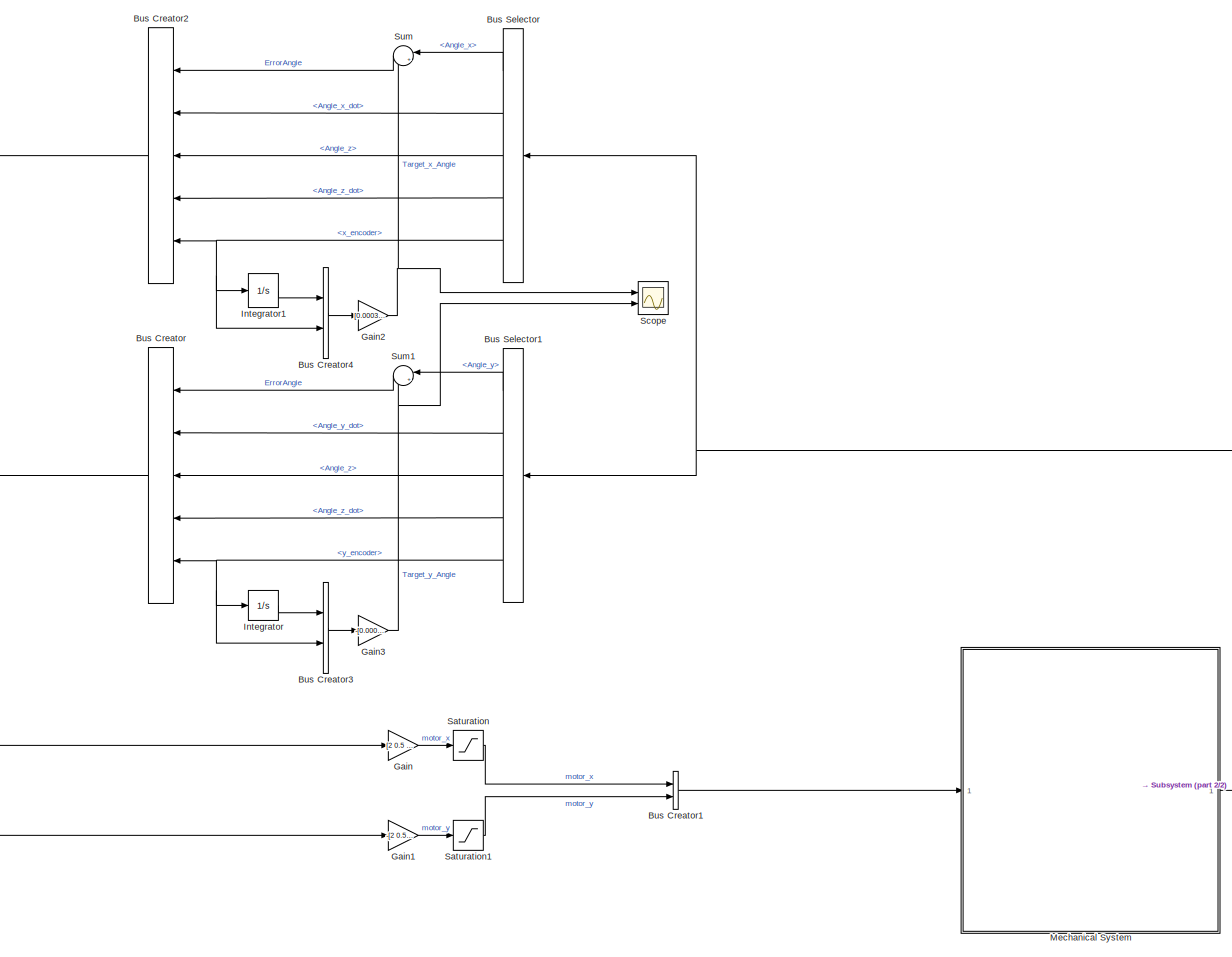
[diagram: root canvas - part 1/2, center side, full height]
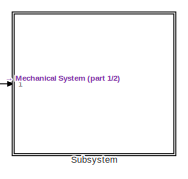
[diagram: root canvas - part 2/2, bottom right region]
MODEL slx_6ed4446f0a41
KIND model
CONFIG AbsTol = auto
CONFIG EnableMultiTasking = off
CONFIG FixedStep = auto
CONFIG MaxStep = 1e-3
CONFIG MinStep = 1e-6
CONFIG RelTol = 1e-3
CONFIG SampleTimeConstraint = Unconstrained
CONFIG Solver = VariableStepAuto
CONFIG SolverName = VariableStepAuto
CONFIG StartTime = 0.0
CONFIG StopTime = 5
BLOCK [BusCreator] Bus Creator
  DisplayOption = bar
  InheritFromInputs = on
  Inputs = 5
  Ports = [5, 1]
BLOCK [BusCreator] Bus Creator1
  DisplayOption = bar
  InheritFromInputs = on
  Inputs = 2
  Ports = [2, 1]
BLOCK [BusCreator] Bus Creator2
  DisplayOption = bar
  InheritFromInputs = on
  Inputs = 5
  Ports = [5, 1]
BLOCK [BusCreator] Bus Creator3
  DisplayOption = bar
  InheritFromInputs = on
  Inputs = 2
  Ports = [2, 1]
BLOCK [BusCreator] Bus Creator4
  DisplayOption = bar
  InheritFromInputs = on
  Inputs = 2
  Ports = [2, 1]
BLOCK [BusSelector] Bus Selector
  OutputAsBus = off
  OutputSignals = Angle_x,Angle_x_dot,Angle_z,Angle_z_dot,x_encoder
  Ports = [1, 5]
BLOCK [BusSelector] Bus Selector1
  OutputAsBus = off
  OutputSignals = Angle_y,Angle_y_dot,Angle_z,Angle_z_dot,y_encoder
  Ports = [1, 5]
BLOCK [Gain] Gain
  Gain = [2 0.5 0 0 0.01-0.0001]
  Multiplication = Matrix(K*u)
  OutDataTypeStr = Inherit: Inherit via internal rule
  ParamDataTypeStr = Inherit: Inherit via internal rule
  SaturateOnIntegerOverflow = off
BLOCK [Gain] Gain1
  Gain = -[2 0.5 0 0 -0.01+0.0001]
  Multiplication = Matrix(K*u)
  OutDataTypeStr = Inherit: Inherit via internal rule
  ParamDataTypeStr = Inherit: Inherit via internal rule
  SaturateOnIntegerOverflow = off
BLOCK [Gain] Gain2
  Gain = [0.0003 0.00035]
  Multiplication = Matrix(K*u)
  OutDataTypeStr = Inherit: Inherit via internal rule
  ParamDataTypeStr = Inherit: Inherit via internal rule
  SaturateOnIntegerOverflow = off
BLOCK [Gain] Gain3
  Gain = -[0.0003 0.00035]
  Multiplication = Matrix(K*u)
  OutDataTypeStr = Inherit: Inherit via internal rule
  ParamDataTypeStr = Inherit: Inherit via internal rule
  SaturateOnIntegerOverflow = off
BLOCK [Integrator] Integrator
  LimitOutput = on
  LowerSaturationLimit = -100
  Ports = [1, 1]
  UpperSaturationLimit = 100
BLOCK [Integrator] Integrator1
  LimitOutput = on
  LowerSaturationLimit = -100
  Ports = [1, 1]
  UpperSaturationLimit = 100
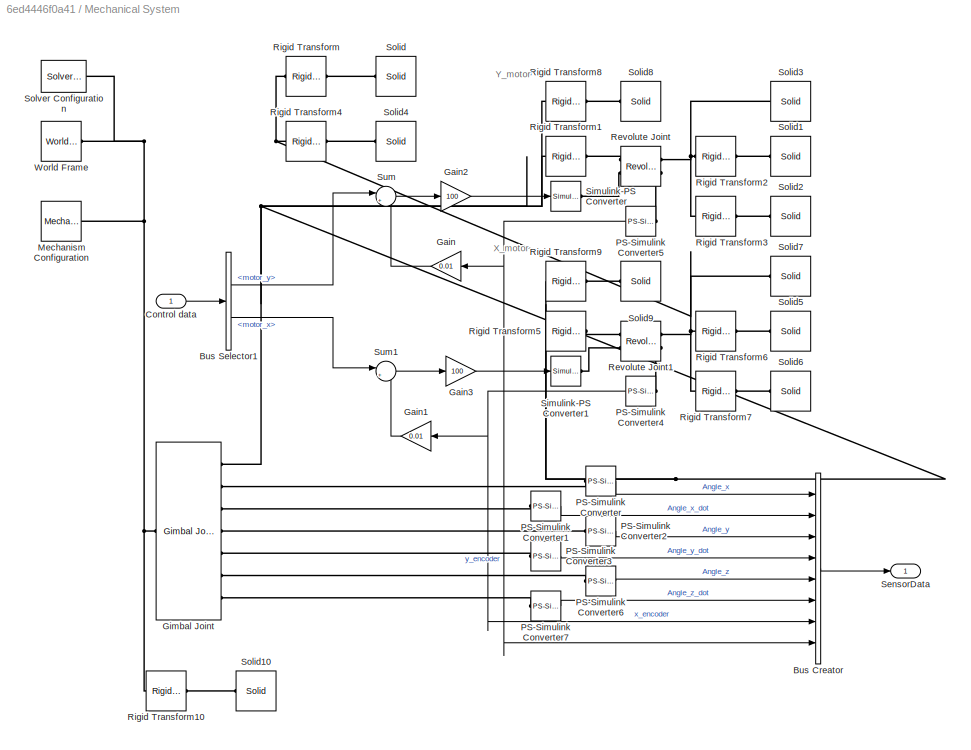
BLOCK [SubSystem] Mechanical System
  Ports = [1, 1]
  RequestExecContextInheritance = off
  Variant = off
BLOCK [BusCreator] Mechanical System/Bus Creator
  DisplayOption = bar
  InheritFromInputs = on
  Inputs = 8
  Ports = [8, 1]
BLOCK [BusSelector] Mechanical System/Bus Selector1
  OutputAsBus = off
  OutputSignals = motor_y,motor_x
  Ports = [1, 2]
BLOCK [Inport] Mechanical System/Control data
  IconDisplay = Port number
BLOCK [Gain] Mechanical System/Gain
  Gain = 0.01
  OutDataTypeStr = Inherit: Inherit via internal rule
  ParamDataTypeStr = Inherit: Inherit via internal rule
  SaturateOnIntegerOverflow = off
BLOCK [Gain] Mechanical System/Gain1
  Gain = 0.01
  OutDataTypeStr = Inherit: Inherit via internal rule
  ParamDataTypeStr = Inherit: Inherit via internal rule
  SaturateOnIntegerOverflow = off
BLOCK [Gain] Mechanical System/Gain2
  Gain = 100
  OutDataTypeStr = Inherit: Inherit via internal rule
  ParamDataTypeStr = Inherit: Inherit via internal rule
  SaturateOnIntegerOverflow = off
BLOCK [Gain] Mechanical System/Gain3
  Gain = 100
  OutDataTypeStr = Inherit: Inherit via internal rule
  ParamDataTypeStr = Inherit: Inherit via internal rule
  SaturateOnIntegerOverflow = off
BLOCK [Reference] Mechanical System/Gimbal Joint  REF=sm_lib/Joints/Gimbal Joint
  Ports = [0, 0, 0, 0, 0, 1, 7]
  SourceBlock = sm_lib/Joints/Gimbal Joint
  SourceProductBaseCode = MS
  SourceProductName = Simscape Multibody
  SourceType = Gimbal Joint
BLOCK [Reference] Mechanical System/Mechanism Configuration  REF=sm_lib/Utilities/Mechanism
Configuration
  Ports = [0, 0, 0, 0, 0, 0, 1]
  SourceBlock = sm_lib/Utilities/Mechanism\nConfiguration
  SourceProductBaseCode = MS
  SourceProductName = Simscape Multibody
  SourceType = Mechanism\nConfiguration
BLOCK [Reference] Mechanical System/PS-Simulink Converter  REF=nesl_utility/PS-Simulink
Converter
  Ports = [0, 1, 0, 0, 0, 1]
  SourceBlock = nesl_utility/PS-Simulink\nConverter
  SourceProductBaseCode = SS
  SourceProductName = Simscape
  SourceType = PS-Simulink\nConverter
BLOCK [Reference] Mechanical System/PS-Simulink Converter1  REF=nesl_utility/PS-Simulink
Converter
  Ports = [0, 1, 0, 0, 0, 1]
  SourceBlock = nesl_utility/PS-Simulink\nConverter
  SourceProductBaseCode = SS
  SourceProductName = Simscape
  SourceType = PS-Simulink\nConverter
BLOCK [Reference] Mechanical System/PS-Simulink Converter2  REF=nesl_utility/PS-Simulink
Converter
  Ports = [0, 1, 0, 0, 0, 1]
  SourceBlock = nesl_utility/PS-Simulink\nConverter
  SourceProductBaseCode = SS
  SourceProductName = Simscape
  SourceType = PS-Simulink\nConverter
BLOCK [Reference] Mechanical System/PS-Simulink Converter3  REF=nesl_utility/PS-Simulink
Converter
  Ports = [0, 1, 0, 0, 0, 1]
  SourceBlock = nesl_utility/PS-Simulink\nConverter
  SourceProductBaseCode = SS
  SourceProductName = Simscape
  SourceType = PS-Simulink\nConverter
BLOCK [Reference] Mechanical System/PS-Simulink Converter4  REF=nesl_utility/PS-Simulink
Converter
  Ports = [0, 1, 0, 0, 0, 1]
  SourceBlock = nesl_utility/PS-Simulink\nConverter
  SourceProductBaseCode = SS
  SourceProductName = Simscape
  SourceType = PS-Simulink\nConverter
BLOCK [Reference] Mechanical System/PS-Simulink Converter5  REF=nesl_utility/PS-Simulink
Converter
  Ports = [0, 1, 0, 0, 0, 1]
  SourceBlock = nesl_utility/PS-Simulink\nConverter
  SourceProductBaseCode = SS
  SourceProductName = Simscape
  SourceType = PS-Simulink\nConverter
BLOCK [Reference] Mechanical System/PS-Simulink Converter6  REF=nesl_utility/PS-Simulink
Converter
  Ports = [0, 1, 0, 0, 0, 1]
  SourceBlock = nesl_utility/PS-Simulink\nConverter
  SourceProductBaseCode = SS
  SourceProductName = Simscape
  SourceType = PS-Simulink\nConverter
BLOCK [Reference] Mechanical System/PS-Simulink Converter7  REF=nesl_utility/PS-Simulink
Converter
  Ports = [0, 1, 0, 0, 0, 1]
  SourceBlock = nesl_utility/PS-Simulink\nConverter
  SourceProductBaseCode = SS
  SourceProductName = Simscape
  SourceType = PS-Simulink\nConverter
BLOCK [Reference] Mechanical System/Revolute Joint  REF=sm_lib/Joints/Revolute Joint
  Ports = [0, 0, 0, 0, 0, 2, 2]
  SourceBlock = sm_lib/Joints/Revolute Joint
  SourceProductBaseCode = MS
  SourceProductName = Simscape Multibody
  SourceType = Revolute Joint
BLOCK [Reference] Mechanical System/Revolute Joint1  REF=sm_lib/Joints/Revolute Joint
  Ports = [0, 0, 0, 0, 0, 2, 2]
  SourceBlock = sm_lib/Joints/Revolute Joint
  SourceProductBaseCode = MS
  SourceProductName = Simscape Multibody
  SourceType = Revolute Joint
BLOCK [Reference] Mechanical System/Rigid Transform  REF=sm_lib/Frames and
Transforms/Rigid
Transform
  Ports = [0, 0, 0, 0, 0, 1, 1]
  SourceBlock = sm_lib/Frames and\nTransforms/Rigid\nTransform
  SourceProductBaseCode = MS
  SourceProductName = Simscape Multibody
  SourceType = Rigid\nTransform
BLOCK [Reference] Mechanical System/Rigid Transform1  REF=sm_lib/Frames and
Transforms/Rigid
Transform
  Ports = [0, 0, 0, 0, 0, 1, 1]
  SourceBlock = sm_lib/Frames and\nTransforms/Rigid\nTransform
  SourceProductBaseCode = MS
  SourceProductName = Simscape Multibody
  SourceType = Rigid\nTransform
BLOCK [Reference] Mechanical System/Rigid Transform10  REF=sm_lib/Frames and
Transforms/Rigid
Transform
  Ports = [0, 0, 0, 0, 0, 1, 1]
  SourceBlock = sm_lib/Frames and\nTransforms/Rigid\nTransform
  SourceProductBaseCode = MS
  SourceProductName = Simscape Multibody
  SourceType = Rigid\nTransform
BLOCK [Reference] Mechanical System/Rigid Transform2  REF=sm_lib/Frames and
Transforms/Rigid
Transform
  Ports = [0, 0, 0, 0, 0, 1, 1]
  SourceBlock = sm_lib/Frames and\nTransforms/Rigid\nTransform
  SourceProductBaseCode = MS
  SourceProductName = Simscape Multibody
  SourceType = Rigid\nTransform
BLOCK [Reference] Mechanical System/Rigid Transform3  REF=sm_lib/Frames and
Transforms/Rigid
Transform
  Ports = [0, 0, 0, 0, 0, 1, 1]
  SourceBlock = sm_lib/Frames and\nTransforms/Rigid\nTransform
  SourceProductBaseCode = MS
  SourceProductName = Simscape Multibody
  SourceType = Rigid\nTransform
BLOCK [Reference] Mechanical System/Rigid Transform4  REF=sm_lib/Frames and
Transforms/Rigid
Transform
  Ports = [0, 0, 0, 0, 0, 1, 1]
  SourceBlock = sm_lib/Frames and\nTransforms/Rigid\nTransform
  SourceProductBaseCode = MS
  SourceProductName = Simscape Multibody
  SourceType = Rigid\nTransform
BLOCK [Reference] Mechanical System/Rigid Transform5  REF=sm_lib/Frames and
Transforms/Rigid
Transform
  Ports = [0, 0, 0, 0, 0, 1, 1]
  SourceBlock = sm_lib/Frames and\nTransforms/Rigid\nTransform
  SourceProductBaseCode = MS
  SourceProductName = Simscape Multibody
  SourceType = Rigid\nTransform
BLOCK [Reference] Mechanical System/Rigid Transform6  REF=sm_lib/Frames and
Transforms/Rigid
Transform
  Ports = [0, 0, 0, 0, 0, 1, 1]
  SourceBlock = sm_lib/Frames and\nTransforms/Rigid\nTransform
  SourceProductBaseCode = MS
  SourceProductName = Simscape Multibody
  SourceType = Rigid\nTransform
BLOCK [Reference] Mechanical System/Rigid Transform7  REF=sm_lib/Frames and
Transforms/Rigid
Transform
  Ports = [0, 0, 0, 0, 0, 1, 1]
  SourceBlock = sm_lib/Frames and\nTransforms/Rigid\nTransform
  SourceProductBaseCode = MS
  SourceProductName = Simscape Multibody
  SourceType = Rigid\nTransform
BLOCK [Reference] Mechanical System/Rigid Transform8  REF=sm_lib/Frames and
Transforms/Rigid
Transform
  Ports = [0, 0, 0, 0, 0, 1, 1]
  SourceBlock = sm_lib/Frames and\nTransforms/Rigid\nTransform
  SourceProductBaseCode = MS
  SourceProductName = Simscape Multibody
  SourceType = Rigid\nTransform
BLOCK [Reference] Mechanical System/Rigid Transform9  REF=sm_lib/Frames and
Transforms/Rigid
Transform
  Ports = [0, 0, 0, 0, 0, 1, 1]
  SourceBlock = sm_lib/Frames and\nTransforms/Rigid\nTransform
  SourceProductBaseCode = MS
  SourceProductName = Simscape Multibody
  SourceType = Rigid\nTransform
BLOCK [Outport] Mechanical System/SensorData
  IconDisplay = Port number
BLOCK [Reference] Mechanical System/Simulink-PS Converter  REF=nesl_utility/Simulink-PS
Converter
  Ports = [1, 0, 0, 0, 0, 0, 1]
  SourceBlock = nesl_utility/Simulink-PS\nConverter
  SourceProductBaseCode = SS
  SourceProductName = Simscape
  SourceType = Simulink-PS\nConverter
BLOCK [Reference] Mechanical System/Simulink-PS Converter1  REF=nesl_utility/Simulink-PS
Converter
  Ports = [1, 0, 0, 0, 0, 0, 1]
  SourceBlock = nesl_utility/Simulink-PS\nConverter
  SourceProductBaseCode = SS
  SourceProductName = Simscape
  SourceType = Simulink-PS\nConverter
BLOCK [Reference] Mechanical System/Solid  REF=sm_lib/Body Elements/Solid
  Ports = [0, 0, 0, 0, 0, 0, 1]
  SourceBlock = sm_lib/Body Elements/Solid
  SourceProductBaseCode = MS
  SourceProductName = Simscape Multibody
  SourceType = Solid
BLOCK [Reference] Mechanical System/Solid1  REF=sm_lib/Body Elements/Solid
  Ports = [0, 0, 0, 0, 0, 0, 1]
  SourceBlock = sm_lib/Body Elements/Solid
  SourceProductBaseCode = MS
  SourceProductName = Simscape Multibody
  SourceType = Solid
BLOCK [Reference] Mechanical System/Solid10  REF=sm_lib/Body Elements/Solid
  Ports = [0, 0, 0, 0, 0, 0, 1]
  SourceBlock = sm_lib/Body Elements/Solid
  SourceProductBaseCode = MS
  SourceProductName = Simscape Multibody
  SourceType = Solid
BLOCK [Reference] Mechanical System/Solid2  REF=sm_lib/Body Elements/Solid
  Ports = [0, 0, 0, 0, 0, 0, 1]
  SourceBlock = sm_lib/Body Elements/Solid
  SourceProductBaseCode = MS
  SourceProductName = Simscape Multibody
  SourceType = Solid
BLOCK [Reference] Mechanical System/Solid3  REF=sm_lib/Body Elements/Solid
  Ports = [0, 0, 0, 0, 0, 0, 1]
  SourceBlock = sm_lib/Body Elements/Solid
  SourceProductBaseCode = MS
  SourceProductName = Simscape Multibody
  SourceType = Solid
BLOCK [Reference] Mechanical System/Solid4  REF=sm_lib/Body Elements/Solid
  Ports = [0, 0, 0, 0, 0, 0, 1]
  SourceBlock = sm_lib/Body Elements/Solid
  SourceProductBaseCode = MS
  SourceProductName = Simscape Multibody
  SourceType = Solid
BLOCK [Reference] Mechanical System/Solid5  REF=sm_lib/Body Elements/Solid
  Ports = [0, 0, 0, 0, 0, 0, 1]
  SourceBlock = sm_lib/Body Elements/Solid
  SourceProductBaseCode = MS
  SourceProductName = Simscape Multibody
  SourceType = Solid
BLOCK [Reference] Mechanical System/Solid6  REF=sm_lib/Body Elements/Solid
  Ports = [0, 0, 0, 0, 0, 0, 1]
  SourceBlock = sm_lib/Body Elements/Solid
  SourceProductBaseCode = MS
  SourceProductName = Simscape Multibody
  SourceType = Solid
BLOCK [Reference] Mechanical System/Solid7  REF=sm_lib/Body Elements/Solid
  Ports = [0, 0, 0, 0, 0, 0, 1]
  SourceBlock = sm_lib/Body Elements/Solid
  SourceProductBaseCode = MS
  SourceProductName = Simscape Multibody
  SourceType = Solid
BLOCK [Reference] Mechanical System/Solid8  REF=sm_lib/Body Elements/Solid
  Ports = [0, 0, 0, 0, 0, 0, 1]
  SourceBlock = sm_lib/Body Elements/Solid
  SourceProductBaseCode = MS
  SourceProductName = Simscape Multibody
  SourceType = Solid
BLOCK [Reference] Mechanical System/Solid9  REF=sm_lib/Body Elements/Solid
  Ports = [0, 0, 0, 0, 0, 0, 1]
  SourceBlock = sm_lib/Body Elements/Solid
  SourceProductBaseCode = MS
  SourceProductName = Simscape Multibody
  SourceType = Solid
BLOCK [Reference] Mechanical System/Solver Configuration  REF=nesl_utility/Solver
Configuration
  Ports = [0, 0, 0, 0, 0, 0, 1]
  SourceBlock = nesl_utility/Solver\nConfiguration
  SourceProductBaseCode = SS
  SourceProductName = Simscape
  SourceType = Solver\nConfiguration
BLOCK [Sum] Mechanical System/Sum
  IconShape = round
  InputSameDT = off
  Inputs = |+-
  OutDataTypeStr = Inherit: Inherit via internal rule
  Ports = [2, 1]
  SaturateOnIntegerOverflow = off
BLOCK [Sum] Mechanical System/Sum1
  IconShape = round
  InputSameDT = off
  Inputs = |+-
  OutDataTypeStr = Inherit: Inherit via internal rule
  Ports = [2, 1]
  SaturateOnIntegerOverflow = off
BLOCK [Reference] Mechanical System/World Frame  REF=sm_lib/Frames and
Transforms/World Frame
  Ports = [0, 0, 0, 0, 0, 0, 1]
  SourceBlock = sm_lib/Frames and\nTransforms/World Frame
  SourceProductBaseCode = MS
  SourceProductName = Simscape Multibody
  SourceType = World Frame
BLOCK [Saturate] Saturation
  InputPortMap = u0
  LowerLimit = -10
  Ports = [1, 1]
  UpperLimit = 10
BLOCK [Saturate] Saturation1
  InputPortMap = u0
  LowerLimit = -10
  Ports = [1, 1]
  UpperLimit = 10
BLOCK [Scope] Scope
  NumInputPorts = 2
  Ports = [2]
  ScopeSpecificationString = Simulink.scopes.TimeScopeBlockCfg('CurrentConfiguration', extmgr.ConfigurationSet(extmgr.Configuration('Core','General UI',true),extmgr.Configuration('Core','Source UI',true),extmgr.Configuration('Sources','WiredSimulink',true,'DataLoggingVariableName','ScopeData1'),extmgr.Configuration('Visuals','Time Domain',true,'SerializedDisplays',{struct('MinYLimReal','-0.14992','MaxYLimReal','0.39424','YLab...<+1735ch>
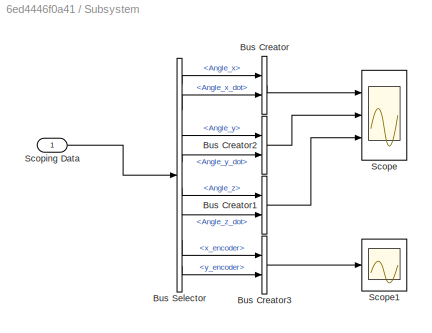
BLOCK [SubSystem] Subsystem
  Ports = [1]
  RequestExecContextInheritance = off
  Variant = off
BLOCK [BusCreator] Subsystem/Bus Creator
  DisplayOption = bar
  InheritFromInputs = on
  Inputs = 2
  Ports = [2, 1]
BLOCK [BusCreator] Subsystem/Bus Creator1
  DisplayOption = bar
  InheritFromInputs = on
  Inputs = 2
  Ports = [2, 1]
BLOCK [BusCreator] Subsystem/Bus Creator2
  DisplayOption = bar
  InheritFromInputs = on
  Inputs = 2
  Ports = [2, 1]
BLOCK [BusCreator] Subsystem/Bus Creator3
  DisplayOption = bar
  InheritFromInputs = on
  Inputs = 2
  Ports = [2, 1]
BLOCK [BusSelector] Subsystem/Bus Selector
  OutputAsBus = off
  OutputSignals = Angle_x,Angle_x_dot,Angle_y,Angle_y_dot,Angle_z,Angle_z_dot,x_encoder,y_encoder
  Ports = [1, 8]
BLOCK [Scope] Subsystem/Scope
  NumInputPorts = 3
  Ports = [3]
  ScopeSpecificationString = Simulink.scopes.TimeScopeBlockCfg('CurrentConfiguration', extmgr.ConfigurationSet(extmgr.Configuration('Core','General UI',true),extmgr.Configuration('Core','Source UI',true),extmgr.Configuration('Sources','WiredSimulink',true),extmgr.Configuration('Visuals','Time Domain',true,'SerializedDisplays',{struct('MinYLimReal','-0.02204','MaxYLimReal','0.06574','YLabelReal','','MinYLimMag','0.00000','MaxY...<+3436ch>
BLOCK [Scope] Subsystem/Scope1
  NumInputPorts = 1
  Ports = [1]
  ScopeSpecificationString = Simulink.scopes.TimeScopeBlockCfg('CurrentConfiguration', extmgr.ConfigurationSet(extmgr.Configuration('Core','General UI',true),extmgr.Configuration('Core','Source UI',true),extmgr.Configuration('Sources','WiredSimulink',true,'DataLoggingVariableName','ScopeData1'),extmgr.Configuration('Visuals','Time Domain',true,'SerializedDisplays',{struct('MinYLimReal','-354.02313','MaxYLimReal','256.81856','...<+1697ch>
BLOCK [Inport] Subsystem/Scoping Data
  IconDisplay = Port number
BLOCK [Sum] Sum
  IconShape = round
  InputSameDT = off
  Inputs = |++
  OutDataTypeStr = Inherit: Inherit via internal rule
  Ports = [2, 1]
  SaturateOnIntegerOverflow = off
BLOCK [Sum] Sum1
  IconShape = round
  InputSameDT = off
  Inputs = |++
  OutDataTypeStr = Inherit: Inherit via internal rule
  Ports = [2, 1]
  SaturateOnIntegerOverflow = off
ANNOTATION Mechanical System: X_motor
ANNOTATION Mechanical System: Y_motor
LINE Bus Creator1:1 -> Mechanical System:1
LINE Bus Creator2:1 -> Gain:1
LINE Bus Creator3:1 -> Gain3:1
LINE Bus Creator4:1 -> Gain2:1
LINE Bus Creator:1 -> Gain1:1
LINE Bus Selector1:1 -> Sum1:1
LINE Bus Selector1:2 -> Bus Creator:2
LINE Bus Selector1:3 -> Bus Creator:3
LINE Bus Selector1:4 -> Bus Creator:4
NET Bus Selector1:5 -> Bus Creator3:2, Bus Creator:5, Integrator:1
LINE Bus Selector:1 -> Sum:1
LINE Bus Selector:2 -> Bus Creator2:2
LINE Bus Selector:3 -> Bus Creator2:3
LINE Bus Selector:4 -> Bus Creator2:4
NET Bus Selector:5 -> Bus Creator2:5, Bus Creator4:2, Integrator1:1
LINE Gain1:1 -> Saturation1:1
NET Gain2:1 -> Scope:1, Sum:2
NET Gain3:1 -> Scope:2, Sum1:2
LINE Gain:1 -> Saturation:1
LINE Integrator1:1 -> Bus Creator4:1
LINE Integrator:1 -> Bus Creator3:1
LINE Mechanical System/Bus Creator:1 -> Mechanical System/SensorData:1
LINE Mechanical System/Bus Selector1:1 -> Mechanical System/Sum:1
LINE Mechanical System/Bus Selector1:2 -> Mechanical System/Sum1:1
LINE Mechanical System/Control data:1 -> Mechanical System/Bus Selector1:1
LINE Mechanical System/Gain1:1 -> Mechanical System/Sum1:2
LINE Mechanical System/Gain2:1 -> Mechanical System/Simulink-PS Converter:1
LINE Mechanical System/Gain3:1 -> Mechanical System/Simulink-PS Converter1:1
LINE Mechanical System/Gain:1 -> Mechanical System/Sum:2
LINE Mechanical System/PS-Simulink Converter1:1 -> Mechanical System/Bus Creator:2
LINE Mechanical System/PS-Simulink Converter2:1 -> Mechanical System/Bus Creator:3
LINE Mechanical System/PS-Simulink Converter3:1 -> Mechanical System/Bus Creator:4
NET Mechanical System/PS-Simulink Converter4:1 -> Mechanical System/Bus Creator:7, Mechanical System/Gain1:1
NET Mechanical System/PS-Simulink Converter5:1 -> Mechanical System/Bus Creator:8, Mechanical System/Gain:1
LINE Mechanical System/PS-Simulink Converter6:1 -> Mechanical System/Bus Creator:5
LINE Mechanical System/PS-Simulink Converter7:1 -> Mechanical System/Bus Creator:6
LINE Mechanical System/PS-Simulink Converter:1 -> Mechanical System/Bus Creator:1
LINE Mechanical System/Sum1:1 -> Mechanical System/Gain3:1
LINE Mechanical System/Sum:1 -> Mechanical System/Gain2:1
NET Mechanical System:1 -> Bus Selector1:1, Bus Selector:1, Subsystem:1
LINE Saturation1:1 -> Bus Creator1:2
LINE Saturation:1 -> Bus Creator1:1
LINE Subsystem/Bus Creator1:1 -> Subsystem/Scope:3
LINE Subsystem/Bus Creator2:1 -> Subsystem/Scope:2
LINE Subsystem/Bus Creator3:1 -> Subsystem/Scope1:1
LINE Subsystem/Bus Creator:1 -> Subsystem/Scope:1
LINE Subsystem/Bus Selector:1 -> Subsystem/Bus Creator:1
LINE Subsystem/Bus Selector:2 -> Subsystem/Bus Creator:2
LINE Subsystem/Bus Selector:3 -> Subsystem/Bus Creator2:1
LINE Subsystem/Bus Selector:4 -> Subsystem/Bus Creator2:2
LINE Subsystem/Bus Selector:5 -> Subsystem/Bus Creator1:1
LINE Subsystem/Bus Selector:6 -> Subsystem/Bus Creator1:2
LINE Subsystem/Bus Selector:7 -> Subsystem/Bus Creator3:1
LINE Subsystem/Bus Selector:8 -> Subsystem/Bus Creator3:2
LINE Subsystem/Scoping Data:1 -> Subsystem/Bus Selector:1
LINE Sum1:1 -> Bus Creator:1
LINE Sum:1 -> Bus Creator2:1
PNET net1: Mechanical System/Gimbal Joint:LConn1 -- Mechanical System/Mechanism Configuration:RConn1 -- Mechanical System/Rigid Transform10:LConn1 -- Mechanical System/Solver Configuration:RConn1 -- Mechanical System/World Frame:RConn1
PNET net2: Mechanical System/Gimbal Joint:RConn1 -- Mechanical System/Rigid Transform1:LConn1 -- Mechanical System/Rigid Transform4:LConn1 -- Mechanical System/Rigid Transform5:LConn1 -- Mechanical System/Rigid Transform8:LConn1 -- Mechanical System/Rigid Transform9:LConn1 -- Mechanical System/Rigid Transform:LConn1
PLINE Mechanical System/Gimbal Joint:RConn2 -- Mechanical System/PS-Simulink Converter:LConn1
PLINE Mechanical System/Gimbal Joint:RConn3 -- Mechanical System/PS-Simulink Converter1:LConn1
PLINE Mechanical System/Gimbal Joint:RConn4 -- Mechanical System/PS-Simulink Converter2:LConn1
PLINE Mechanical System/Gimbal Joint:RConn5 -- Mechanical System/PS-Simulink Converter3:LConn1
PLINE Mechanical System/Gimbal Joint:RConn6 -- Mechanical System/PS-Simulink Converter6:LConn1
PLINE Mechanical System/Gimbal Joint:RConn7 -- Mechanical System/PS-Simulink Converter7:LConn1
PLINE Mechanical System/PS-Simulink Converter4:LConn1 -- Mechanical System/Revolute Joint1:RConn2
PLINE Mechanical System/PS-Simulink Converter5:LConn1 -- Mechanical System/Revolute Joint:RConn2
PLINE Mechanical System/Revolute Joint1:LConn1 -- Mechanical System/Rigid Transform5:RConn1
PLINE Mechanical System/Revolute Joint1:LConn2 -- Mechanical System/Simulink-PS Converter1:RConn1
PNET net3: Mechanical System/Revolute Joint1:RConn1 -- Mechanical System/Rigid Transform6:LConn1 -- Mechanical System/Rigid Transform7:LConn1 -- Mechanical System/Solid7:RConn1
PLINE Mechanical System/Revolute Joint:LConn1 -- Mechanical System/Rigid Transform1:RConn1
PLINE Mechanical System/Revolute Joint:LConn2 -- Mechanical System/Simulink-PS Converter:RConn1
PNET net4: Mechanical System/Revolute Joint:RConn1 -- Mechanical System/Rigid Transform2:LConn1 -- Mechanical System/Rigid Transform3:LConn1 -- Mechanical System/Solid3:RConn1
PLINE Mechanical System/Rigid Transform10:RConn1 -- Mechanical System/Solid10:RConn1
PLINE Mechanical System/Rigid Transform2:RConn1 -- Mechanical System/Solid1:RConn1
PLINE Mechanical System/Rigid Transform3:RConn1 -- Mechanical System/Solid2:RConn1
PLINE Mechanical System/Rigid Transform4:RConn1 -- Mechanical System/Solid4:RConn1
PLINE Mechanical System/Rigid Transform6:RConn1 -- Mechanical System/Solid5:RConn1
PLINE Mechanical System/Rigid Transform7:RConn1 -- Mechanical System/Solid6:RConn1
PLINE Mechanical System/Rigid Transform8:RConn1 -- Mechanical System/Solid8:RConn1
PLINE Mechanical System/Rigid Transform9:RConn1 -- Mechanical System/Solid9:RConn1
PLINE Mechanical System/Rigid Transform:RConn1 -- Mechanical System/Solid:RConn1
note: NET lines group one-source signal fan-out (src -> all destinations, sorted); 1:1 wires keep LINE; PNET lines group multi-terminal physical nets as a canonical sorted terminal list (undirected conserving connections); 2-terminal nets keep the pairwise PLINE form
